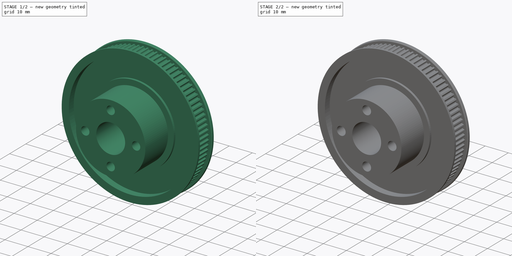
[diagram: build sequence overview — one tinted view per stage of 2, left to right]
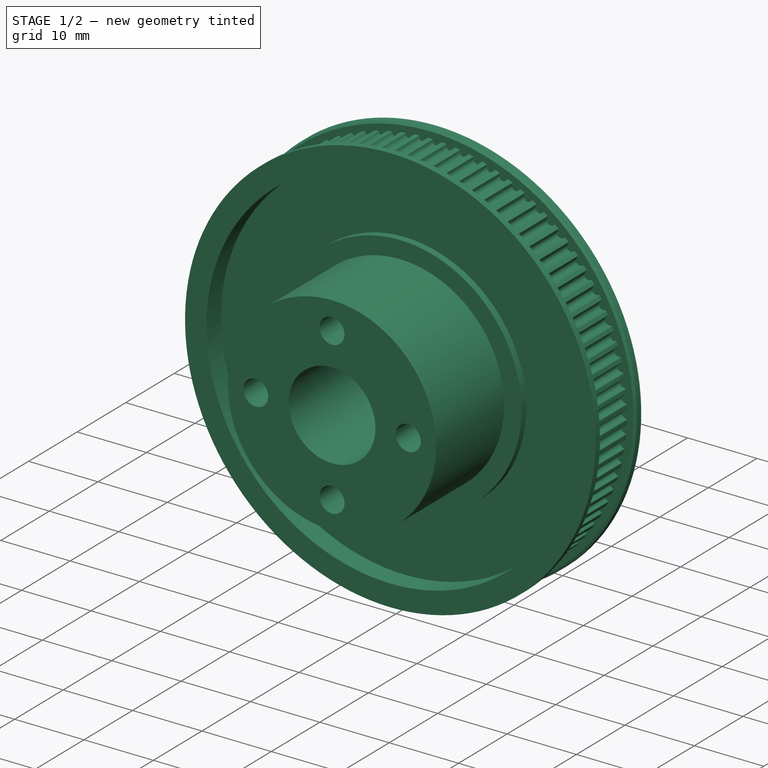
[diagram: stage 1 of 2 — iso view after this stage's code; geometry added in this stage tinted green]
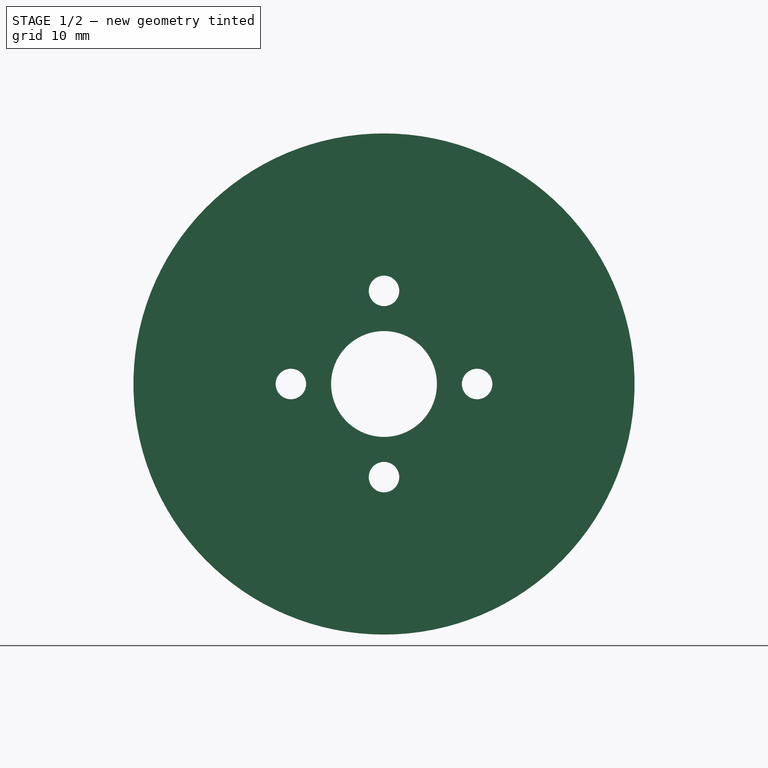
[diagram: stage 1 of 2 — front view after this stage's code; geometry added in this stage tinted green]
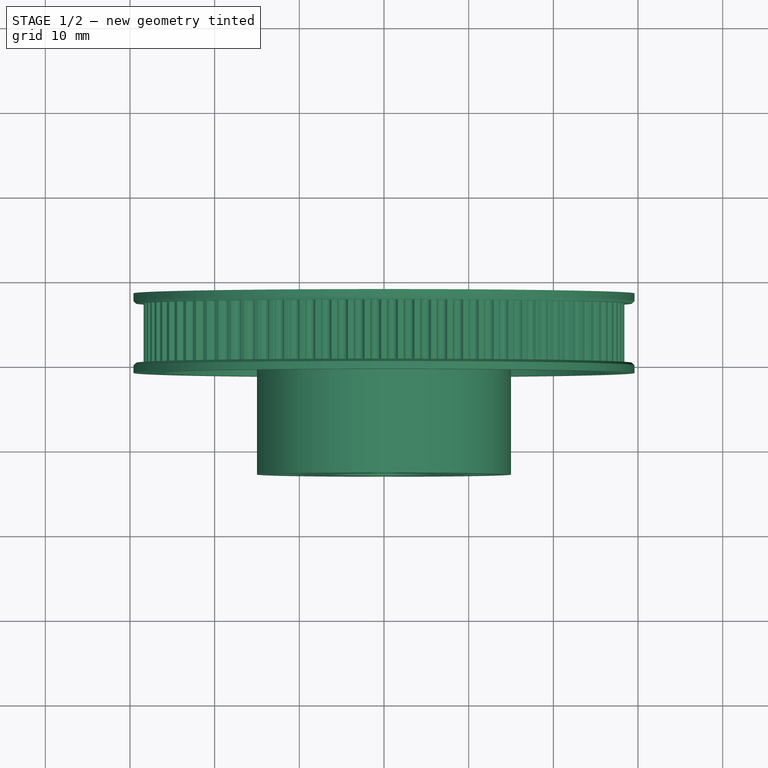
[diagram: stage 1 of 2 — top view after this stage's code; geometry added in this stage tinted green]
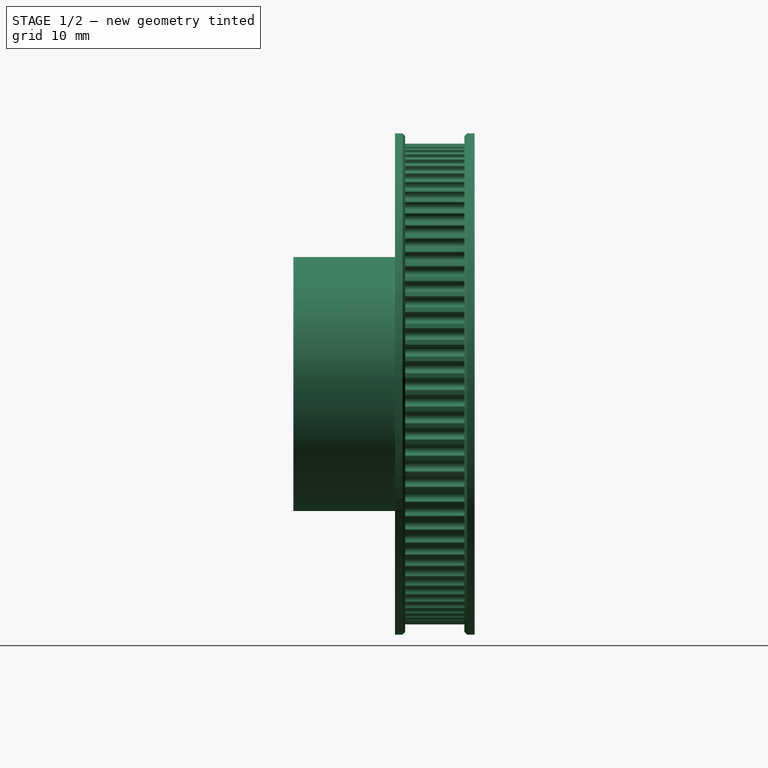
[diagram: stage 1 of 2 — right view after this stage's code; geometry added in this stage tinted green]
FCSTD DOCUMENT  (FreeCAD 0.19R24276 (Git))
Label: Pulley_GT2_90t_j3_modified
License: All rights reserved
LicenseURL: http://en.wikipedia.org/wiki/All_rights_reserved
objects: Sketcher::SketchObject×3, PartDesign::Pocket×2, Part::Feature×1, PartDesign::FeatureBase×1, PartDesign::Pad×1, PartDesign::Body×1
note: 12 computed .brp shape members not serialized (recipe doc carries the construction recipe); baked Part::Feature solids carry a one-line shape summary decoded from their .brp

FEATURE [Part::Feature] Part__Feature  label="GT2 Pulley - 90 teeth - J3_GT2 Pulley - Parametric"
  shape: bbox 59.19 x 21.4 x 59.19 mm, 836 faces (baked)
FEATURE [PartDesign::FeatureBase] BaseFeature
  BaseFeature = -> Part__Feature
FEATURE [Sketcher::SketchObject] Sketch
  ExternalGeometry = -> [BaseFeature]
  FullyConstrained = true
  MapMode = 5
  Placement = pos=(0,8.2,0) rot=(0,0.707107,0.707107;3.14159rad)
  Support = -> [BaseFeature]
  sketch-geometry (28):
    g0: LineSegment StartX=-7.5 StartY=2.02073 StartZ=0 EndX=-11 EndY=4.04145 EndZ=0
    g1: LineSegment StartX=-11 StartY=4.04145 StartZ=0 EndX=-14.5 EndY=2.02073 EndZ=0
    g2: LineSegment StartX=-14.5 StartY=2.02073 StartZ=0 EndX=-14.5 EndY=-2.02073 EndZ=0
    g3: LineSegment StartX=-14.5 StartY=-2.02073 StartZ=0 EndX=-11 EndY=-4.04145 EndZ=0
    g4: LineSegment StartX=-11 StartY=-4.04145 StartZ=0 EndX=-7.5 EndY=-2.02073 EndZ=0
    g5: LineSegment StartX=-7.5 StartY=-2.02073 StartZ=0 EndX=-7.5 EndY=2.02073 EndZ=0
    g6: Circle CenterX=-11 CenterY=-3e-16 CenterZ=0 NormalX=0 NormalY=0 NormalZ=1 AngleXU=0 Radius=4.04145
    g7: LineSegment StartX=14.5 StartY=2.02073 StartZ=0 EndX=11 EndY=4.04145 EndZ=0
    g8: LineSegment StartX=11 StartY=4.04145 StartZ=0 EndX=7.5 EndY=2.02073 EndZ=0
    g9: LineSegment StartX=7.5 StartY=2.02073 StartZ=0 EndX=7.5 EndY=-2.02073 EndZ=0
    g10: LineSegment StartX=7.5 StartY=-2.02073 StartZ=0 EndX=11 EndY=-4.04145 EndZ=0
    g11: LineSegment StartX=11 StartY=-4.04145 StartZ=0 EndX=14.5 EndY=-2.02073 EndZ=0
    g12: LineSegment StartX=14.5 StartY=-2.02073 StartZ=0 EndX=14.5 EndY=2.02073 EndZ=0
    g13: Circle CenterX=11 CenterY=-1e-15 CenterZ=0 NormalX=0 NormalY=0 NormalZ=1 AngleXU=0 Radius=4.04145
    g14: LineSegment StartX=4.04145 StartY=11 StartZ=0 EndX=2.02073 EndY=14.5 EndZ=0
    g15: LineSegment StartX=2.02073 StartY=14.5 StartZ=0 EndX=-2.02073 EndY=14.5 EndZ=0
    g16: LineSegment StartX=-2.02073 StartY=14.5 StartZ=0 EndX=-4.04145 EndY=11 EndZ=0
    g17: LineSegment StartX=-4.04145 StartY=11 StartZ=0 EndX=-2.02073 EndY=7.5 EndZ=0
    g18: LineSegment StartX=-2.02073 StartY=7.5 StartZ=0 EndX=2.02073 EndY=7.5 EndZ=0
    g19: LineSegment StartX=2.02073 StartY=7.5 StartZ=0 EndX=4.04145 EndY=11 EndZ=0
    g20: Circle CenterX=-1.4e-15 CenterY=11 CenterZ=0 NormalX=0 NormalY=0 NormalZ=1 AngleXU=0 Radius=4.04145
    g21: LineSegment StartX=4.04145 StartY=-11 StartZ=0 EndX=2.02073 EndY=-7.5 EndZ=0
    g22: LineSegment StartX=2.02073 StartY=-7.5 StartZ=0 EndX=-2.02073 EndY=-7.5 EndZ=0
    g23: LineSegment StartX=-2.02073 StartY=-7.5 StartZ=0 EndX=-4.04145 EndY=-11 EndZ=0
    g24: LineSegment StartX=-4.04145 StartY=-11 StartZ=0 EndX=-2.02073 EndY=-14.5 EndZ=0
    g25: LineSegment StartX=-2.02073 StartY=-14.5 StartZ=0 EndX=2.02073 EndY=-14.5 EndZ=0
    g26: LineSegment StartX=2.02073 StartY=-14.5 StartZ=0 EndX=4.04145 EndY=-11 EndZ=0
    g27: Circle CenterX=-3.4e-15 CenterY=-11 CenterZ=0 NormalX=0 NormalY=0 NormalZ=1 AngleXU=0 Radius=4.04145
  constraints (64):
    c: Coincident(g0,g1)
    c: Coincident(g1,g2)
    c: Coincident(g2,g3)
    c: Coincident(g3,g4)
    c: Coincident(g4,g5)
    c: Coincident(g5,g0)
    c: Equal(g0, g1-g5) x5
    c: PointOnObject(g0,g6)
    c: PointOnObject(g1,g6)
    c: PointOnObject(g2,g6)
    c: PointOnObject(g3,g6)
    c: PointOnObject(g4,g6)
    c: PointOnObject(g5,g6)
    c: Coincident(g6,g-3)
    c: Coincident(g7,g8)
    c: Coincident(g8,g9)
    c: Coincident(g9,g10)
    c: Coincident(g10,g11)
    c: Coincident(g11,g12)
    c: Coincident(g12,g7)
    c: Equal(g7, g8-g12) x5
    c: PointOnObject(g7,g13)
    c: PointOnObject(g8,g13)
    c: PointOnObject(g9,g13)
    c: PointOnObject(g10,g13)
    c: PointOnObject(g11,g13)
    c: PointOnObject(g12,g13)
    c: Coincident(g13,g-5)
    c: Coincident(g14,g15)
    c: Coincident(g15,g16)
    c: Coincident(g16,g17)
    c: Coincident(g17,g18)
    c: Coincident(g18,g19)
    c: Coincident(g19,g14)
    c: Equal(g14, g15-g19) x5
    c: PointOnObject(g14,g20)
    c: PointOnObject(g15,g20)
    c: PointOnObject(g16,g20)
    c: PointOnObject(g17,g20)
    c: PointOnObject(g18,g20)
    c: PointOnObject(g19,g20)
    c: Coincident(g20,g-4)
    c: Coincident(g21,g22)
    c: Coincident(g22,g23)
    c: Coincident(g23,g24)
    c: Coincident(g24,g25)
    c: Coincident(g25,g26)
    c: Coincident(g26,g21)
    c: Equal(g21, g22-g26) x5
    c: PointOnObject(g21,g27)
    c: PointOnObject(g22,g27)
    c: PointOnObject(g23,g27)
    c: PointOnObject(g24,g27)
    c: PointOnObject(g25,g27)
    c: PointOnObject(g26,g27)
    c: Coincident(g27,g-6)
    c: Equal(g6,g27)
    c: Equal(g27,g13)
    c: Equal(g13,g20)
    c: Vertical(g5)
    c: Vertical(g9)
    c: Horizontal(g18)
    c: Horizontal(g22)
    c: DistanceX(g1,g0) = 7
FEATURE [PartDesign::Pocket] Pocket
  BaseFeature = -> BaseFeature
  Length = 6
  Length2 = 100
  Profile = -> Sketch
  Type = 0
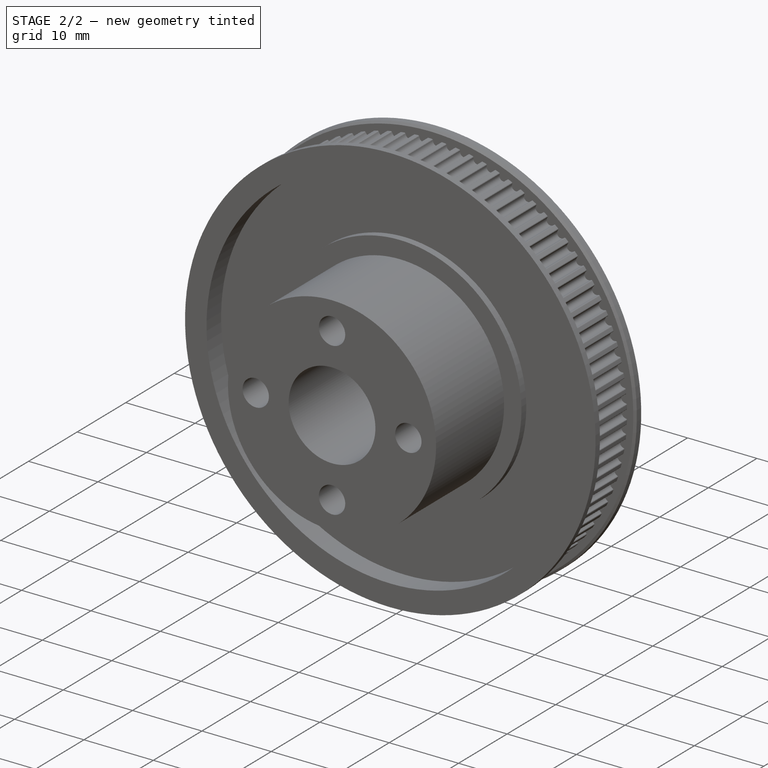
[diagram: stage 2 of 2 — iso view after this stage's code; geometry added in this stage tinted green]
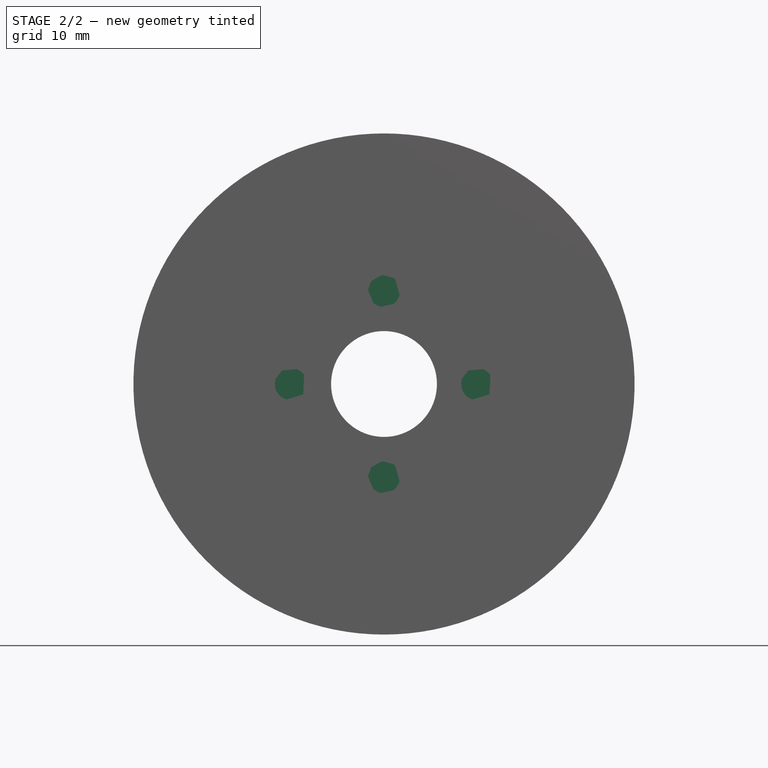
[diagram: stage 2 of 2 — front view after this stage's code; geometry added in this stage tinted green]
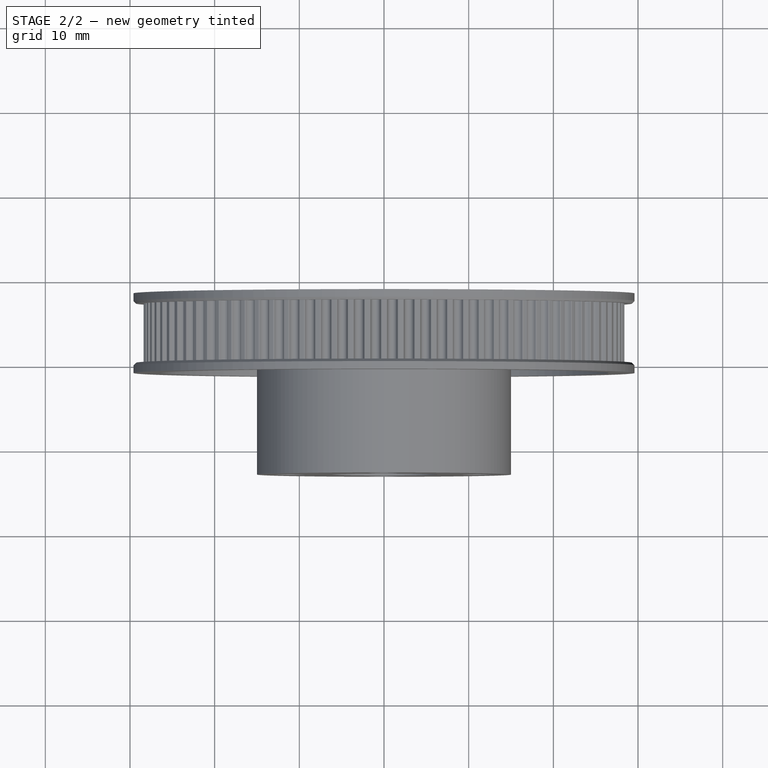
[diagram: stage 2 of 2 — top view after this stage's code; geometry added in this stage tinted green]
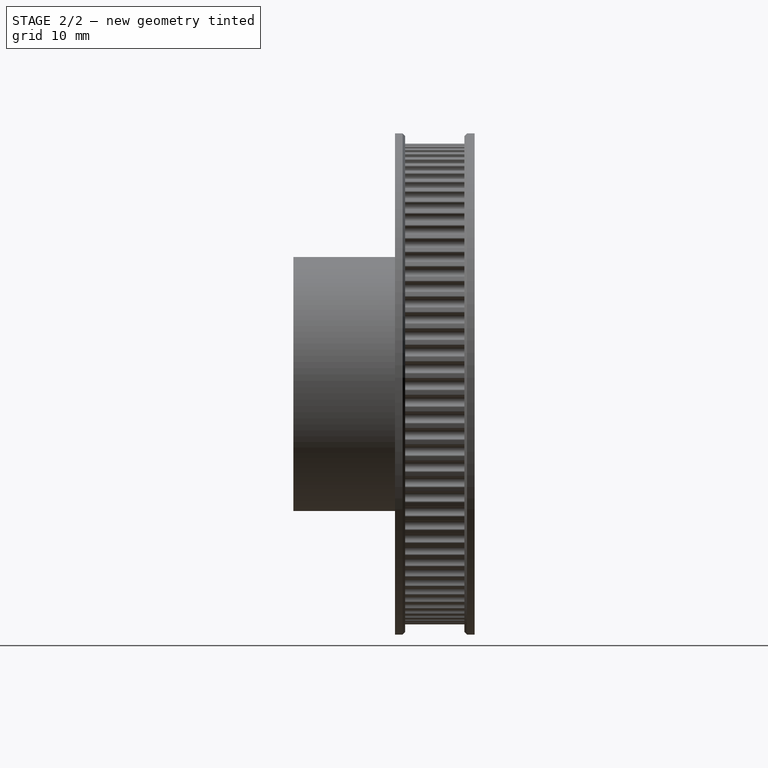
[diagram: stage 2 of 2 — right view after this stage's code; geometry added in this stage tinted green]
FEATURE [Sketcher::SketchObject] Sketch001
  ExternalGeometry = -> [Pocket]
  FullyConstrained = true
  MapMode = 5
  Placement = pos=(0,2.2,-6e-16) rot=(0,0.707107,0.707107;3.14159rad)
  Support = -> [Pocket]
  sketch-geometry (4):
    g0: Circle CenterX=0 CenterY=11 CenterZ=0 NormalX=0 NormalY=0 NormalZ=1 AngleXU=0 Radius=1.9
    g1: Circle CenterX=-11 CenterY=0 CenterZ=0 NormalX=0 NormalY=0 NormalZ=1 AngleXU=0 Radius=1.9
    g2: Circle CenterX=11 CenterY=0 CenterZ=0 NormalX=0 NormalY=0 NormalZ=1 AngleXU=0 Radius=1.9
    g3: Circle CenterX=0 CenterY=-11 CenterZ=0 NormalX=0 NormalY=0 NormalZ=1 AngleXU=0 Radius=1.9
  constraints (8):
    c: Coincident(g0,g-4)
    c: Coincident(g1,g-3)
    c: Coincident(g2,g-5)
    c: Coincident(g3,g-6)
    c: Equal(g1,g0)
    c: Equal(g0,g2)
    c: Equal(g2,g3)
    c: Radius(g0) = 1.9
FEATURE [PartDesign::Pocket] Pocket001
  BaseFeature = -> Pocket
  Length = 5
  Length2 = 100
  Profile = -> Sketch001
  Type = 1
FEATURE [Sketcher::SketchObject] Sketch002
  ExternalGeometry = -> [Pocket001]
  FullyConstrained = true
  MapMode = 5
  Placement = pos=(0,2.2,-6e-16) rot=(0,0.707107,0.707107;3.14159rad)
  Support = -> [Pocket001]
  sketch-geometry (4):
    g0: Circle CenterX=-11 CenterY=0 CenterZ=0 NormalX=0 NormalY=0 NormalZ=1 AngleXU=0 Radius=1.9
    g1: Circle CenterX=0 CenterY=-11 CenterZ=0 NormalX=0 NormalY=0 NormalZ=1 AngleXU=0 Radius=1.9
    g2: Circle CenterX=11 CenterY=0 CenterZ=0 NormalX=0 NormalY=0 NormalZ=1 AngleXU=0 Radius=1.9
    g3: Circle CenterX=0 CenterY=11 CenterZ=0 NormalX=0 NormalY=0 NormalZ=1 AngleXU=0 Radius=1.9
  constraints (8):
    c: Coincident(g0,g-4)
    c: Coincident(g1,g-5)
    c: Coincident(g2,g-6)
    c: Coincident(g3,g-3)
    c: Equal(g0,g3)
    c: Equal(g3,g2)
    c: Equal(g2,g1)
    c: Radius(g3) = 1.9
FEATURE [PartDesign::Pad] Pad
  BaseFeature = -> Pocket001
  Direction = (1,1,1)
  Length = 0.4
  Length2 = 100
  Profile = -> Sketch002
  Reversed = true
  Type = 0
FEATURE [PartDesign::Body] Body
  BaseFeature = -> Part__Feature
  Group = -> [BaseFeature,Sketch,Pocket,Sketch001,Pocket001,Sketch002,Pad]
  Origin = -> Origin
  Placement = pos=(0,0,0) rot=(0,0.707107,-0.707107;3.14159rad)
  Tip = -> Pad
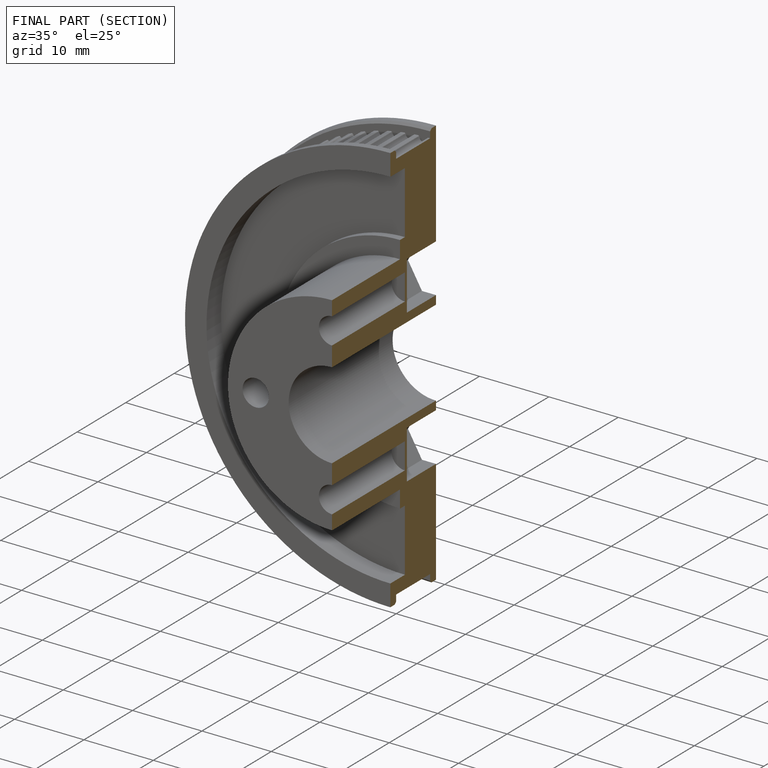
[diagram: finished part — half-section view (interior)]
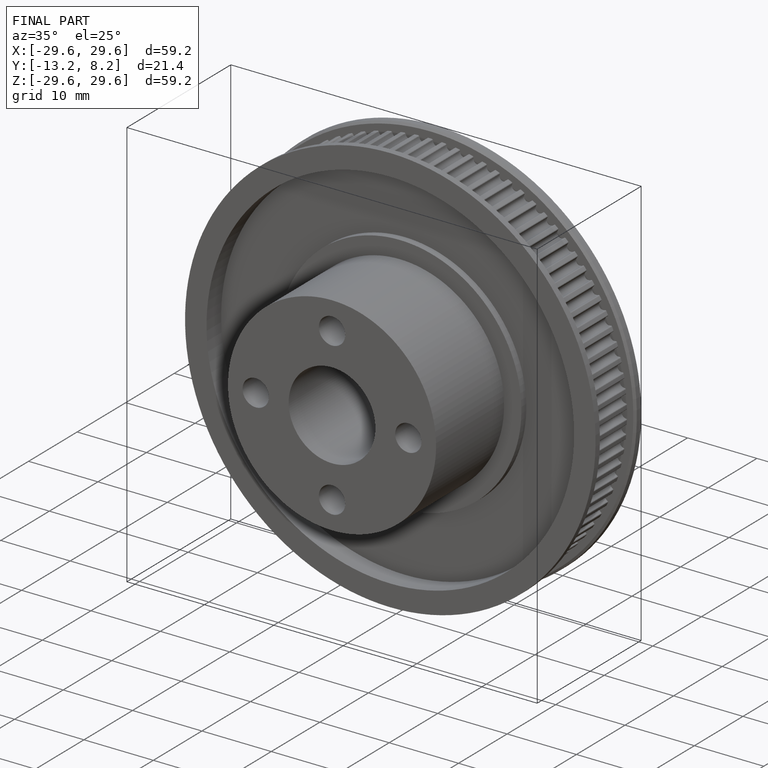
[diagram: finished part — iso view with bounding-box wireframe]
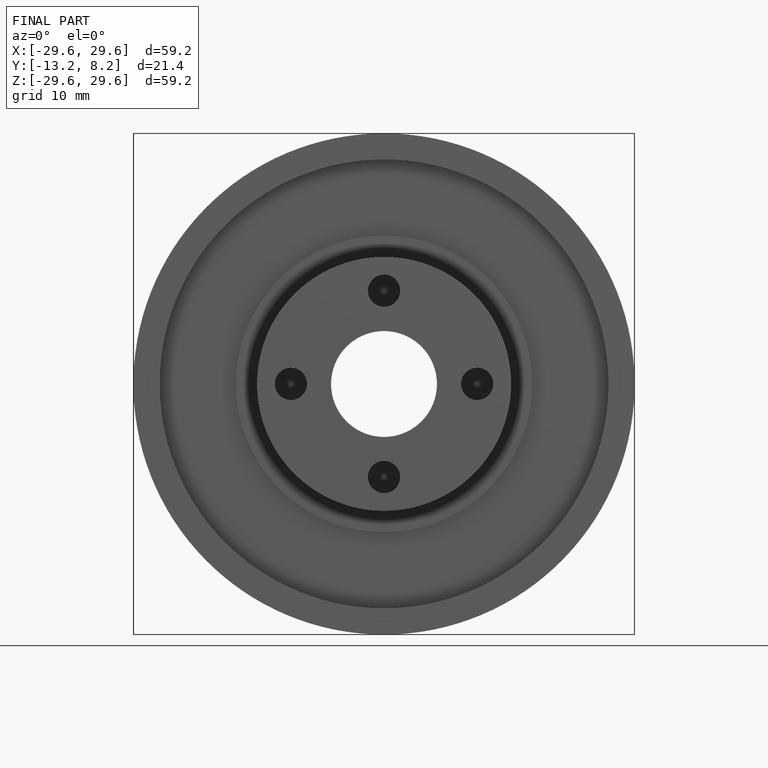
[diagram: finished part — front view with bounding-box wireframe]
